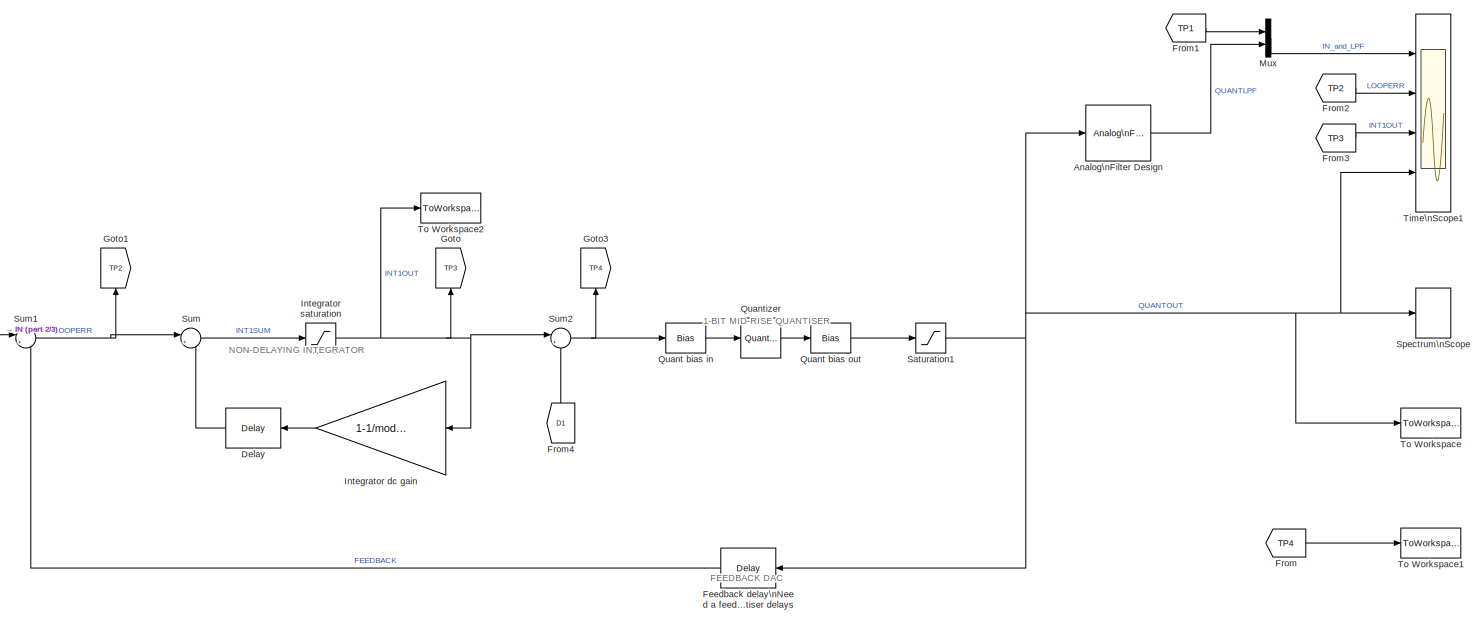
[diagram: root canvas - part 1/3, full width, middle band]
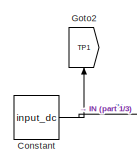
[diagram: root canvas - part 2/3, middle left region]
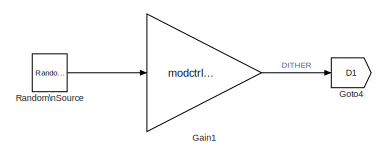
[diagram: root canvas - part 3/3, bottom left region]
MODEL dc_to_mod1
KIND model
BLOCK [Reference] Analog\nFilter Design  REF=dsparch4/Analog\nFilter Design
  AttributesFormatString = Low-pass filter the loop output\\nto illustrate intuitively how the\\npulse density modulated +1/-1\\noutput stream does indeed capture\\nthe input signal
  N = 8
  Ports = [1, 1]
  Rp = 2
  Rs = 40
  SID = 19
  SourceBlock = dsparch4/Analog\nFilter Design
  SourceType = Analog Filter Design
  Whi = 80
  Wlo = pi*Fs/OSR
  filttype = Lowpass
  method = Bessel
BLOCK [Constant] Constant
  SID = 56
  SampleTime = 1/Fs
  Value = input_dc
  VectorParams1D = off
BLOCK [Reference] Delay  REF=dspsigops/Delay
  InputProcessing = Inherited (this choice will be removed - see release notes)
  Ports = [1, 1]
  SID = 39
  SourceBlock = dspsigops/Delay
  SourceType = Delay
  UserData = DataTag0
  UserDataPersistent = on
  delay = 1
  dif_ic_for_ch = off
  dif_ic_for_dly = off
  dly_unit = Samples
  ic = 0
  ic_detail = off
  reset_popup = None
BLOCK [Reference] Feedback delay\nNeed a feedback delay to avoid a delay-free\nloop as we have no integrator or\nquantiser delays  REF=dspsigops/Delay
  InputProcessing = Inherited (this choice will be removed - see release notes)
  Ports = [1, 1]
  SID = 41
  SourceBlock = dspsigops/Delay
  SourceType = Delay
  UserData = DataTag1
  UserDataPersistent = on
  delay = 1
  dif_ic_for_ch = off
  dif_ic_for_dly = off
  dly_unit = Samples
  ic = 0
  ic_detail = off
  reset_popup = None
BLOCK [From] From
  GotoTag = TP4
  SID = 48
BLOCK [From] From1
  GotoTag = TP1
  SID = 49
BLOCK [From] From2
  GotoTag = TP2
  SID = 50
BLOCK [From] From3
  GotoTag = TP3
  SID = 51
BLOCK [From] From4
  GotoTag = D1
  SID = 53
BLOCK [Gain] Gain1
  AttributesFormatString = Dither level adjust
  Gain = modctrl.dgain1
  OutDataTypeStr = Inherit: Inherit via internal rule
  ParamDataTypeStr = Inherit: Inherit via internal rule
  SID = 29
  SaturateOnIntegerOverflow = off
BLOCK [Goto] Goto
  GotoTag = TP3
  SID = 44
BLOCK [Goto] Goto1
  GotoTag = TP2
  SID = 45
BLOCK [Goto] Goto2
  GotoTag = TP1
  SID = 46
BLOCK [Goto] Goto3
  GotoTag = TP4
  SID = 47
BLOCK [Goto] Goto4
  GotoTag = D1
  SID = 52
BLOCK [Gain] Integrator dc gain
  AttributesFormatString = Integrator leakage\\n(model finite integrator dc/LF\\ngain in analog modulators)
  Gain = 1-1/modctrl.igain1
  OutDataTypeStr = Inherit: Inherit via internal rule
  ParamDataTypeStr = Inherit: Inherit via internal rule
  SID = 32
  SaturateOnIntegerOverflow = off
BLOCK [Saturate] Integrator saturation
  AttributesFormatString = Real integrators will have\\noutput swing limits (analog\\nsignal headroom or digital\\naccumulator min/max values.)
  InputPortMap = u0
  LowerLimit = -(modctrl.isat1)
  Ports = [1, 1]
  SID = 36
  UpperLimit = modctrl.isat1
BLOCK [Mux] Mux
  DisplayOption = bar
  Inputs = 2
  Ports = [2, 1]
  SID = 24
BLOCK [Bias] Quant bias in
  AttributesFormatString = Need offset to give\\nMID-RISE quantiser
  Bias = 1
  SID = 57
  SaturateOnIntegerOverflow = off
BLOCK [Bias] Quant bias out
  AttributesFormatString = Shift outputs to\\n..., -2, 1, 1, ...
  Bias = -1
  SID = 58
  SaturateOnIntegerOverflow = off
BLOCK [Quantizer] Quantizer
  AttributesFormatString = step = 2
  LinearizeAsGain = off
  QuantizationInterval = 2
  SID = 59
BLOCK [Reference] Random\nSource  REF=dspsrcs4/Random\nSource
  AttributesFormatString = Dither source
  CltLength = 12
  DataType = Double
  IsInherit = off
  MaxVal = 1
  MeanVal = 0
  MinVal = -1
  NormMethod = Ziggurat
  OutComplex = Real
  Ports = [0, 1]
  RepMode = Not repeatable
  SID = 25
  SampFrame = 1
  SampMode = Discrete
  SampTime = 1/Fs
  SourceBlock = dspsrcs4/Random\nSource
  SourceType = Random Source
  SrcType = Uniform
  UserData = DataTag2
  UserDataPersistent = on
  VarVal = 1
  rawSeed = 1
BLOCK [Saturate] Saturation1
  AttributesFormatString = Limit quantiser\\noutput to +/-1
  InputPortMap = u0
  LowerLimit = -1
  Ports = [1, 1]
  SID = 33
  UpperLimit = 1
BLOCK [SpectrumAnalyzer] Spectrum\nScope
  CloseFcn = scopeextensions.ScopeBlock.callback(gcbh, 'onBlockClose');
  CopyFcn = scopeextensions.ScopeBlock.callback(gcbh, 'onBlockCopy', gcbh);
  DeleteFcn = scopeextensions.ScopeBlock.callback(gcbh, 'onBlockDelete');
  NameChangeFcn = scopeextensions.ScopeBlock.callback(gcbh, 'onBlockRename');
  Ports = [1]
  PreDeleteFcn = scopeextensions.ScopeBlock.callback(gcbh, 'onBlockPreDelete');
  PreSaveFcn = scopeextensions.ScopeBlock.callback(gcbh, 'onModelSave');
  SID = 21
  UserData = DataTag3
  UserDataPersistent = on
BLOCK [Sum] Sum
  AttributesFormatString = Integrator summer
  IconShape = round
  InputSameDT = off
  Inputs = |++
  OutDataTypeStr = Inherit: Inherit via internal rule
  Ports = [2, 1]
  SID = 3
  SaturateOnIntegerOverflow = off
BLOCK [Sum] Sum1
  AttributesFormatString = Modulator input\\nloop servo error (input - fbk)
  IconShape = round
  InputSameDT = off
  Inputs = |+-
  OutDataTypeStr = Inherit: Inherit via internal rule
  Ports = [2, 1]
  SID = 7
  SaturateOnIntegerOverflow = off
BLOCK [Sum] Sum2
  IconShape = round
  InputSameDT = off
  Inputs = |++
  OutDataTypeStr = Inherit: Inherit via internal rule
  Ports = [2, 1]
  SID = 30
  SaturateOnIntegerOverflow = off
BLOCK [Scope] Time\nScope1
  DataFormat = Structure
  Floating = off
  MaxDataPoints = 10000
  NumInputPorts = 4
  Ports = [4]
  SID = 38
  SampleTime = 0
  SaveName = ScopeData1
  ShowLegends = off
  TimeRange = 0.01
  YMax = 5~1.2~2.5~1.2
  YMin = -5~-1.2~-2.5~-1.2
  ZoomMode = yonly
BLOCK [ToWorkspace] To Workspace
  AttributesFormatString = Export SDM output\\nto workspace for\\npost-processing
  MaxDataPoints = inf
  Ports = [1]
  SID = 31
  SampleTime = -1
  VariableName = Qout
BLOCK [ToWorkspace] To Workspace1
  AttributesFormatString = Export Quant' input\\nto workspace for\\npost-processing\\n(e.g quantiser gain)
  MaxDataPoints = inf
  Ports = [1]
  SID = 43
  SampleTime = -1
  VariableName = Qin
BLOCK [ToWorkspace] To Workspace2
  MaxDataPoints = inf
  Ports = [1]
  SID = 60
  SampleTime = -1
  VariableName = INT1OUT
ANNOTATION (root): 1-BIT MID-RISE QUANTISER \n\n\n\n\n\n\n\n\n\n\n\n\n
ANNOTATION (root): FEEDBACK DAC \n\n\n\n\n\n
ANNOTATION (root): NON-DELAYING INTEGRATOR \n\n\n \n\n\n\n\n\n\n\n\n\n\n\n\n\n\n\n
LINE Analog\nFilter Design:1 -> Mux:2
NET Constant:1 -> Goto2:1, Sum1:1
LINE Delay:1 -> Sum:2
LINE Feedback delay\nNeed a feedback delay to avoid a delay-free\nloop as we have no integrator or\nquantiser delays:1 -> Sum1:2
LINE From1:1 -> Mux:1
LINE From2:1 -> Time\nScope1:2
LINE From3:1 -> Time\nScope1:3
LINE From4:1 -> Sum2:2
LINE From:1 -> To Workspace1:1
LINE Gain1:1 -> Goto4:1
LINE Integrator dc gain:1 -> Delay:1
NET Integrator saturation:1 -> Goto:1, Integrator dc gain:1, Sum2:1, To Workspace2:1
LINE Mux:1 -> Time\nScope1:1
LINE Quant bias in:1 -> Quantizer:1
LINE Quant bias out:1 -> Saturation1:1
LINE Quantizer:1 -> Quant bias out:1
LINE Random\nSource:1 -> Gain1:1
NET Saturation1:1 -> Analog\nFilter Design:1, Feedback delay\nNeed a feedback delay to avoid a delay-free\nloop as we have no integrator or\nquantiser delays:1, Spectrum\nScope:1, Time\nScope1:4, To Workspace:1
NET Sum1:1 -> Goto1:1, Sum:1
NET Sum2:1 -> Goto3:1, Quant bias in:1
LINE Sum:1 -> Integrator saturation:1
note: NET lines group one-source signal fan-out (src -> all destinations, sorted); 1:1 wires keep LINE
